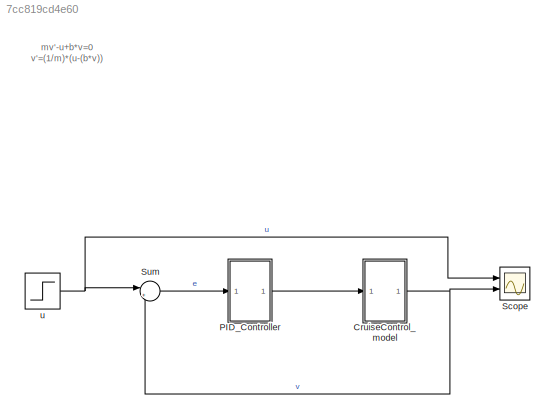
MODEL slx_7cc819cd4e60
KIND model
CONFIG AbsTol = auto
CONFIG EnableMultiTasking = off
CONFIG FixedStep = auto
CONFIG MaxStep = auto
CONFIG MinStep = auto
CONFIG PostLoadFcn = m=1000;\nb=50;\nu=500;
CONFIG RelTol = 1e-3
CONFIG SampleTimeConstraint = Unconstrained
CONFIG Solver = VariableStepAuto
CONFIG SolverName = VariableStepAuto
CONFIG StartTime = 0.0
CONFIG StopTime = 120.0
WORKSPACE source: mxarray member
WORKSPACE Kd = 10
WORKSPACE Ki = 39.43
WORKSPACE Kp = 847
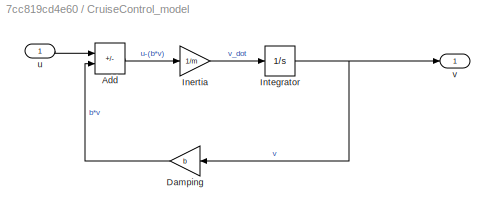
BLOCK [SubSystem] CruiseControl_model
  Ports = [1, 1]
  RequestExecContextInheritance = off
BLOCK [Sum] CruiseControl_model/Add
  IconShape = rectangular
  Inputs = +-
  Ports = [2, 1]
BLOCK [Gain] CruiseControl_model/Damping
  Gain = b
  NameLocation = top
BLOCK [Gain] CruiseControl_model/Inertia
  Gain = 1/m
BLOCK [Integrator] CruiseControl_model/Integrator
  Ports = [1, 1]
BLOCK [Inport] CruiseControl_model/u
BLOCK [Outport] CruiseControl_model/v
BLOCK [ModelReference] PID_Controller
  ModelNameDialog = PID_Controller
  ModelReferenceVersion = 1.30
  Ports = [1, 1]
BLOCK [Scope] Scope
  Floating = off
  NumInputPorts = 2
  Ports = [2]
  ScopeSpecificationString = Simulink.scopes.TimeScopeBlockCfg('CurrentConfiguration', extmgr.ConfigurationSet(extmgr.Configuration('Core','General UI',true),extmgr.Configuration('Core','Source UI',true),extmgr.Configuration('Sources','WiredSimulink',true),extmgr.Configuration('Visuals','Time Domain',true,'SerializedDisplays',{struct('MinYLimReal','400.00000','MaxYLimReal','600.00000','YLabelReal','','MinYLimMag','400.00000',...<+1966ch>
BLOCK [Sum] Sum
  Inputs = |+-
  Ports = [2, 1]
BLOCK [Step] u
  After = u
  SampleTime = 0
  Time = 0
ANNOTATION (root): mv'-u+b*v=0 v'=(1/m)*(u-(b*v))
LINE CruiseControl_model/Add:1 -> CruiseControl_model/Inertia:1
LINE CruiseControl_model/Damping:1 -> CruiseControl_model/Add:2
LINE CruiseControl_model/Inertia:1 -> CruiseControl_model/Integrator:1
NET CruiseControl_model/Integrator:1 -> CruiseControl_model/Damping:1, CruiseControl_model/v:1
LINE CruiseControl_model/u:1 -> CruiseControl_model/Add:1
NET CruiseControl_model:1 -> Scope:2, Sum:2
LINE PID_Controller:1 -> CruiseControl_model:1
LINE Sum:1 -> PID_Controller:1
NET u:1 -> Scope:1, Sum:1
note: NET lines group one-source signal fan-out (src -> all destinations, sorted); 1:1 wires keep LINE
